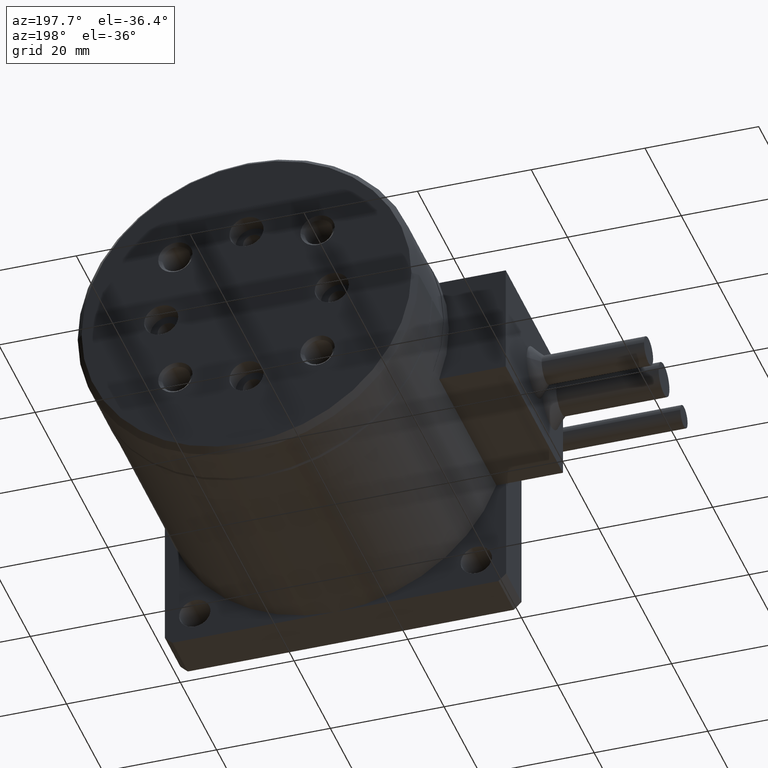
[diagram: clean part render]
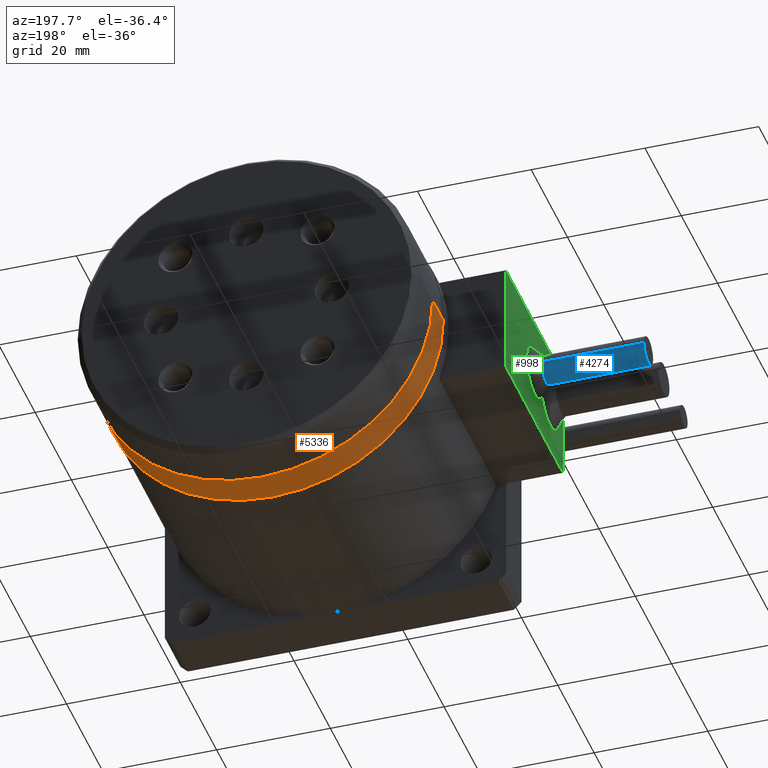
[diagram: same view with three faces highlighted in distinct colors, each labeled with its STEP entity id]
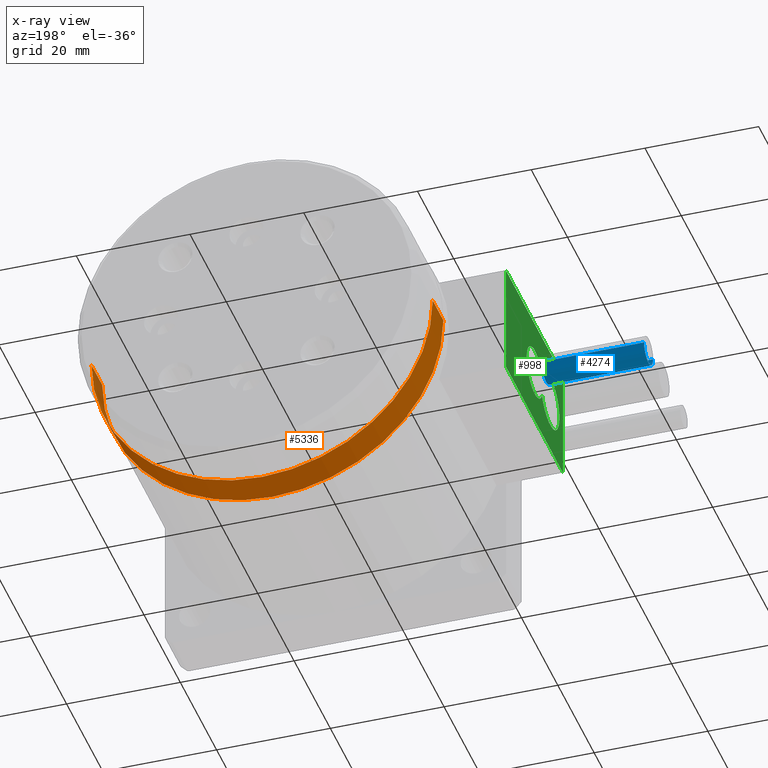
[diagram: x-ray of the same camera — body ghosted, the three highlighted faces saturated]
A machine part, auxiliary view with three faces highlighted in distinct colors.
The next image is the same camera in x-ray (body ghosted, the three faces saturated) — at least one of them is partly hidden behind the body in this view.
Their STEP definitions:

[orange] entity #5336 — the highlighted cylindrical surface (partial cylindrical patch) has radius 30 mm, axis along (0, -1, -0).
#400 = CARTESIAN_POINT ( 'NONE',  ( 60.08123850349501500, 48.69547724548376500, 29.86812560160680600 ) ) ;
#488 = LINE ( 'NONE', #1092, #5268 ) ;
#1092 = CARTESIAN_POINT ( 'NONE',  ( 60.08123850349500100, 49.69547724548377200, 29.86812560160680600 ) ) ;
#1470 = DIRECTION ( 'NONE',  ( -1.000000000000000000, 0.0000000000000000000, 1.156482317317871500E-016 ) ) ;
#1692 = CARTESIAN_POINT ( 'NONE',  ( 0.08123850349500000300, 48.69547724548375100, 29.86812560160681700 ) ) ;
#2048 = VERTEX_POINT ( 'NONE', #1692 ) ;
#2073 = AXIS2_PLACEMENT_3D ( 'NONE', #2209, #4389, #7307 ) ;
#2209 = CARTESIAN_POINT ( 'NONE',  ( 30.08123850349500800, 42.79547724548377400, 29.86812560160681300 ) ) ;
#2404 = FACE_OUTER_BOUND ( 'NONE', #6851, .T. ) ;
#2588 = LINE ( 'NONE', #7637, #5552 ) ;
#2998 = CIRCLE ( 'NONE', #2073, 30.00000000000000000 ) ;
#3677 = ORIENTED_EDGE ( 'NONE', *, *, #5019, .T. ) ;
#3858 = CARTESIAN_POINT ( 'NONE',  ( 60.08123850349500800, 42.79547724548378100, 29.86812560160680600 ) ) ;
#4140 = EDGE_CURVE ( 'NONE', #9279, #8674, #2998, .T. ) ;
#4280 = AXIS2_PLACEMENT_3D ( 'NONE', #6039, #6100, #6905 ) ;
#4330 = CYLINDRICAL_SURFACE ( 'NONE', #4280, 30.00000000000000000 ) ;
#4389 = DIRECTION ( 'NONE',  ( 1.550910762415538600E-016, -1.000000000000000000, -1.273579337255762800E-032 ) ) ;
#4466 = ORIENTED_EDGE ( 'NONE', *, *, #4140, .F. ) ;
#4661 = EDGE_CURVE ( 'NONE', #2048, #5408, #7759, .T. ) ;
#4889 = CARTESIAN_POINT ( 'NONE',  ( 0.08123850349501041100, 42.79547724548377400, 29.86812560160681700 ) ) ;
#5019 = EDGE_CURVE ( 'NONE', #5408, #8674, #488, .T. ) ;
#5268 = VECTOR ( 'NONE', #8415, 1000.000000000000000 ) ;
#5336 = ADVANCED_FACE ( 'NONE', ( #2404 ), #4330, .T. ) ;
#5374 = ORIENTED_EDGE ( 'NONE', *, *, #5997, .F. ) ;
#5408 = VERTEX_POINT ( 'NONE', #400 ) ;
#5552 = VECTOR ( 'NONE', #6235, 1000.000000000000000 ) ;
#5997 = EDGE_CURVE ( 'NONE', #2048, #9279, #2588, .T. ) ;
#6039 = CARTESIAN_POINT ( 'NONE',  ( 30.08123850349500800, 49.69547724548377200, 29.86812560160681300 ) ) ;
#6100 = DIRECTION ( 'NONE',  ( 1.550910762415538600E-016, -1.000000000000000000, -1.273579337255762800E-032 ) ) ;
#6235 = DIRECTION ( 'NONE',  ( 1.550910762415538600E-016, -1.000000000000000000, -1.273579337255762800E-032 ) ) ;
#6286 = ORIENTED_EDGE ( 'NONE', *, *, #4661, .T. ) ;
#6447 = CARTESIAN_POINT ( 'NONE',  ( 30.08123850349500800, 48.69547724548375800, 29.86812560160681300 ) ) ;
#6570 = DIRECTION ( 'NONE',  ( 1.550910762415538600E-016, -1.000000000000000000, -1.273579337255762800E-032 ) ) ;
#6851 = EDGE_LOOP ( 'NONE', ( #6286, #3677, #4466, #5374 ) ) ;
#6905 = DIRECTION ( 'NONE',  ( -1.000000000000000000, 0.0000000000000000000, 1.156482317317871500E-016 ) ) ;
#7307 = DIRECTION ( 'NONE',  ( -1.000000000000000000, 0.0000000000000000000, 1.156482317317871500E-016 ) ) ;
#7637 = CARTESIAN_POINT ( 'NONE',  ( 0.08123850349501041100, 49.69547724548377200, 29.86812560160681700 ) ) ;
#7759 = CIRCLE ( 'NONE', #8328, 30.00000000000000000 ) ;
#8328 = AXIS2_PLACEMENT_3D ( 'NONE', #6447, #6570, #1470 ) ;
#8415 = DIRECTION ( 'NONE',  ( 1.550910762415538600E-016, -1.000000000000000000, -1.273579337255762800E-032 ) ) ;
#8674 = VERTEX_POINT ( 'NONE', #3858 ) ;
#9279 = VERTEX_POINT ( 'NONE', #4889 ) ;

[blue] entity #4274 — the highlighted cylindrical surface (edge-blend (fillet) strip) has radius 2.5 mm, axis along (1, 0, -0).
#271 = CARTESIAN_POINT ( 'NONE',  ( -29.99999999999999600, 26.50000000000000400, 30.00000000000001400 ) ) ;
#637 = CARTESIAN_POINT ( 'NONE',  ( -11.99999999997316800, 24.00000000000000400, 30.00000000000001400 ) ) ;
#1228 = AXIS2_PLACEMENT_3D ( 'NONE', #1721, #7454, #2393 ) ;
#1369 = EDGE_CURVE ( 'NONE', #3337, #8701, #4269, .T. ) ;
#1491 = DIRECTION ( 'NONE',  ( 1.000000000000000000, 9.957992501029598700E-017, -1.224646799147353000E-016 ) ) ;
#1721 = CARTESIAN_POINT ( 'NONE',  ( -29.99999999999999600, 24.00000000000000000, 30.00000000000001800 ) ) ;
#1830 = LINE ( 'NONE', #6305, #9334 ) ;
#1980 = DIRECTION ( 'NONE',  ( 1.000000000000000000, 9.957992501029598700E-017, -1.224646799147353000E-016 ) ) ;
#2006 = VECTOR ( 'NONE', #7441, 1000.000000000000000 ) ;
#2116 = VERTEX_POINT ( 'NONE', #6023 ) ;
#2216 = CARTESIAN_POINT ( 'NONE',  ( -29.99999999999999600, 24.00000000000000000, 30.00000000000001800 ) ) ;
#2356 = AXIS2_PLACEMENT_3D ( 'NONE', #2216, #1491, #8811 ) ;
#2393 = DIRECTION ( 'NONE',  ( 0.0000000000000000000, -1.000000000000000000, 0.0000000000000000000 ) ) ;
#2507 = CIRCLE ( 'NONE', #4543, 2.499999999966348700 ) ;
#2628 = EDGE_LOOP ( 'NONE', ( #8197, #7221, #4997, #8698 ) ) ;
#3217 = VERTEX_POINT ( 'NONE', #5995 ) ;
#3337 = VERTEX_POINT ( 'NONE', #6084 ) ;
#3940 = LINE ( 'NONE', #8142, #2006 ) ;
#4269 = CIRCLE ( 'NONE', #2356, 2.500000000000002200 ) ;
#4274 = ADVANCED_FACE ( 'NONE', ( #6744 ), #4719, .T. ) ;
#4543 = AXIS2_PLACEMENT_3D ( 'NONE', #637, #9400, #7884 ) ;
#4719 = CYLINDRICAL_SURFACE ( 'NONE', #1228, 2.500000000000002200 ) ;
#4997 = ORIENTED_EDGE ( 'NONE', *, *, #6648, .F. ) ;
#5530 = EDGE_CURVE ( 'NONE', #8701, #3217, #1830, .T. ) ;
#5995 = CARTESIAN_POINT ( 'NONE',  ( -11.99999999997316800, 26.49999999996635200, 30.00000000000001400 ) ) ;
#6023 = CARTESIAN_POINT ( 'NONE',  ( -11.99999999997316800, 21.50000000003365500, 30.00000000000001400 ) ) ;
#6084 = CARTESIAN_POINT ( 'NONE',  ( -29.99999999999999600, 21.50000000000000000, 30.00000000000001800 ) ) ;
#6305 = CARTESIAN_POINT ( 'NONE',  ( -29.99999999999999600, 26.50000000000000400, 30.00000000000001800 ) ) ;
#6648 = EDGE_CURVE ( 'NONE', #2116, #3217, #2507, .T. ) ;
#6744 = FACE_OUTER_BOUND ( 'NONE', #2628, .T. ) ;
#7221 = ORIENTED_EDGE ( 'NONE', *, *, #5530, .T. ) ;
#7441 = DIRECTION ( 'NONE',  ( 1.000000000000000000, 9.957992501029598700E-017, -1.224646799147353000E-016 ) ) ;
#7454 = DIRECTION ( 'NONE',  ( 1.000000000000000000, 9.957992501029598700E-017, -1.224646799147353000E-016 ) ) ;
#7884 = DIRECTION ( 'NONE',  ( 0.0000000000000000000, -1.000000000000000000, 0.0000000000000000000 ) ) ;
#8062 = EDGE_CURVE ( 'NONE', #3337, #2116, #3940, .T. ) ;
#8142 = CARTESIAN_POINT ( 'NONE',  ( -29.99999999999999600, 21.50000000000000000, 30.00000000000001800 ) ) ;
#8197 = ORIENTED_EDGE ( 'NONE', *, *, #1369, .T. ) ;
#8698 = ORIENTED_EDGE ( 'NONE', *, *, #8062, .F. ) ;
#8701 = VERTEX_POINT ( 'NONE', #271 ) ;
#8811 = DIRECTION ( 'NONE',  ( 0.0000000000000000000, -1.000000000000000000, 0.0000000000000000000 ) ) ;
#9334 = VECTOR ( 'NONE', #1980, 1000.000000000000000 ) ;
#9400 = DIRECTION ( 'NONE',  ( 1.000000000000000000, 9.957992501029598700E-017, -1.224646799147353000E-016 ) ) ;

[green] entity #998 — the highlighted planar face has unit normal (-1, -0, 0).
#67 = CARTESIAN_POINT ( 'NONE',  ( -9.999999999999998200, 8.500000000000003600, 40.00000000000001400 ) ) ;
#145 = EDGE_CURVE ( 'NONE', #4339, #2999, #7280, .T. ) ;
#293 = EDGE_CURVE ( 'NONE', #8655, #4339, #5690, .T. ) ;
#313 = CARTESIAN_POINT ( 'NONE',  ( -9.999999999999998200, 8.500000000000003600, 30.00000000000001400 ) ) ;
#406 = VECTOR ( 'NONE', #3739, 1000.000000000000000 ) ;
#424 = EDGE_CURVE ( 'NONE', #2999, #6644, #5005, .T. ) ;
#642 = LINE ( 'NONE', #313, #406 ) ;
#731 = VERTEX_POINT ( 'NONE', #67 ) ;
#980 = ORIENTED_EDGE ( 'NONE', *, *, #293, .T. ) ;
#996 = CARTESIAN_POINT ( 'NONE',  ( -10.00000000000000500, 40.00000000000000000, 40.00000000000001400 ) ) ;
#998 = ADVANCED_FACE ( 'NONE', ( #9415, #9181 ), #4685, .T. ) ;
#1019 = DIRECTION ( 'NONE',  ( 1.550910762415538600E-016, -1.000000000000000000, -1.273579337255762800E-032 ) ) ;
#1026 = ORIENTED_EDGE ( 'NONE', *, *, #145, .T. ) ;
#1054 = AXIS2_PLACEMENT_3D ( 'NONE', #4101, #1311, #7047 ) ;
#1311 = DIRECTION ( 'NONE',  ( 1.000000000000000000, 9.957992501029598700E-017, -1.224646799147353000E-016 ) ) ;
#1607 = CARTESIAN_POINT ( 'NONE',  ( -10.00000000000000500, 40.00000000000000000, 40.00000000000001400 ) ) ;
#1760 = EDGE_CURVE ( 'NONE', #9374, #9046, #7218, .T. ) ;
#1780 = ORIENTED_EDGE ( 'NONE', *, *, #5225, .T. ) ;
#1846 = ORIENTED_EDGE ( 'NONE', *, *, #7753, .T. ) ;
#2011 = ORIENTED_EDGE ( 'NONE', *, *, #424, .T. ) ;
#2013 = LINE ( 'NONE', #996, #2254 ) ;
#2069 = CIRCLE ( 'NONE', #2752, 4.999999999933606000 ) ;
#2107 = AXIS2_PLACEMENT_3D ( 'NONE', #8637, #9417, #5064 ) ;
#2124 = VECTOR ( 'NONE', #4866, 1000.000000000000000 ) ;
#2254 = VECTOR ( 'NONE', #1019, 1000.000000000000000 ) ;
#2469 = AXIS2_PLACEMENT_3D ( 'NONE', #4656, #6725, #9054 ) ;
#2725 = EDGE_CURVE ( 'NONE', #9374, #731, #642, .T. ) ;
#2752 = AXIS2_PLACEMENT_3D ( 'NONE', #3522, #8607, #9382 ) ;
#2999 = VERTEX_POINT ( 'NONE', #3464 ) ;
#3014 = CARTESIAN_POINT ( 'NONE',  ( -10.00000000000000500, 40.00000000000000000, 20.00000000000001400 ) ) ;
#3057 = ORIENTED_EDGE ( 'NONE', *, *, #2725, .T. ) ;
#3322 = EDGE_CURVE ( 'NONE', #5732, #731, #2013, .T. ) ;
#3464 = CARTESIAN_POINT ( 'NONE',  ( -9.999999999948880000, 20.02941176468045700, 32.11764705875596300 ) ) ;
#3480 = CARTESIAN_POINT ( 'NONE',  ( -10.00000000000000500, 40.00000000000000000, 30.00000000000001400 ) ) ;
#3522 = CARTESIAN_POINT ( 'NONE',  ( -9.999999999963618400, 15.50000000000000400, 30.00000000000001400 ) ) ;
#3581 = CARTESIAN_POINT ( 'NONE',  ( -9.999999999999998200, 8.500000000000003600, 20.00000000000001400 ) ) ;
#3739 = DIRECTION ( 'NONE',  ( 1.224646799147353000E-016, -6.703745552277535400E-033, 1.000000000000000000 ) ) ;
#4101 = CARTESIAN_POINT ( 'NONE',  ( -9.999999999963618400, 24.00000000000000400, 30.00000000000001400 ) ) ;
#4300 = VECTOR ( 'NONE', #4957, 1000.000000000000000 ) ;
#4339 = VERTEX_POINT ( 'NONE', #6226 ) ;
#4341 = CARTESIAN_POINT ( 'NONE',  ( -9.999999999963618400, 10.50000000006639700, 30.00000000000001400 ) ) ;
#4394 = LINE ( 'NONE', #3480, #4300 ) ;
#4562 = EDGE_LOOP ( 'NONE', ( #980, #1026, #2011, #1780 ) ) ;
#4656 = CARTESIAN_POINT ( 'NONE',  ( -9.999999999963618400, 15.50000000000000400, 30.00000000000001400 ) ) ;
#4685 = PLANE ( 'NONE',  #8920 ) ;
#4866 = DIRECTION ( 'NONE',  ( -1.550910762415538600E-016, 1.000000000000000000, 1.273579337255762800E-032 ) ) ;
#4957 = DIRECTION ( 'NONE',  ( -1.224646799147353000E-016, 6.703745552277535400E-033, -1.000000000000000000 ) ) ;
#5005 = CIRCLE ( 'NONE', #2469, 4.999999999933606000 ) ;
#5064 = DIRECTION ( 'NONE',  ( 0.0000000000000000000, -1.000000000000000000, 0.0000000000000000000 ) ) ;
#5225 = EDGE_CURVE ( 'NONE', #6644, #8655, #2069, .T. ) ;
#5430 = DIRECTION ( 'NONE',  ( -1.000000000000000000, -1.550910762415538600E-016, 1.224646799147353000E-016 ) ) ;
#5485 = EDGE_LOOP ( 'NONE', ( #1846, #6934, #3057, #8085 ) ) ;
#5690 = CIRCLE ( 'NONE', #2107, 4.499999999975898400 ) ;
#5732 = VERTEX_POINT ( 'NONE', #1607 ) ;
#6226 = CARTESIAN_POINT ( 'NONE',  ( -9.999999999963618400, 28.49999999997590200, 30.00000000000001400 ) ) ;
#6644 = VERTEX_POINT ( 'NONE', #4341 ) ;
#6725 = DIRECTION ( 'NONE',  ( 1.000000000000000000, 9.957992501029598700E-017, -1.224646799147353000E-016 ) ) ;
#6783 = DIRECTION ( 'NONE',  ( -1.550910762415538600E-016, 1.000000000000000000, 1.273579337255762800E-032 ) ) ;
#6934 = ORIENTED_EDGE ( 'NONE', *, *, #1760, .F. ) ;
#7047 = DIRECTION ( 'NONE',  ( 0.0000000000000000000, -1.000000000000000000, 0.0000000000000000000 ) ) ;
#7218 = LINE ( 'NONE', #7676, #2124 ) ;
#7280 = CIRCLE ( 'NONE', #1054, 4.499999999975898400 ) ;
#7676 = CARTESIAN_POINT ( 'NONE',  ( -10.00000000000000500, 40.00000000000000000, 20.00000000000001400 ) ) ;
#7753 = EDGE_CURVE ( 'NONE', #5732, #9046, #4394, .T. ) ;
#8085 = ORIENTED_EDGE ( 'NONE', *, *, #3322, .F. ) ;
#8270 = CARTESIAN_POINT ( 'NONE',  ( -10.00000000000000500, 40.00000000000000000, 20.00000000000001400 ) ) ;
#8289 = CARTESIAN_POINT ( 'NONE',  ( -9.999999999963618400, 20.02941176470336900, 27.88235294123242300 ) ) ;
#8607 = DIRECTION ( 'NONE',  ( 1.000000000000000000, 9.957992501029598700E-017, -1.224646799147353000E-016 ) ) ;
#8637 = CARTESIAN_POINT ( 'NONE',  ( -9.999999999963618400, 24.00000000000000400, 30.00000000000001400 ) ) ;
#8655 = VERTEX_POINT ( 'NONE', #8289 ) ;
#8920 = AXIS2_PLACEMENT_3D ( 'NONE', #8270, #5430, #6783 ) ;
#9046 = VERTEX_POINT ( 'NONE', #3014 ) ;
#9054 = DIRECTION ( 'NONE',  ( 0.0000000000000000000, -1.000000000000000000, 0.0000000000000000000 ) ) ;
#9181 = FACE_BOUND ( 'NONE', #4562, .T. ) ;
#9374 = VERTEX_POINT ( 'NONE', #3581 ) ;
#9382 = DIRECTION ( 'NONE',  ( 0.0000000000000000000, -1.000000000000000000, 0.0000000000000000000 ) ) ;
#9415 = FACE_OUTER_BOUND ( 'NONE', #5485, .T. ) ;
#9417 = DIRECTION ( 'NONE',  ( 1.000000000000000000, 9.957992501029598700E-017, -1.224646799147353000E-016 ) ) ;